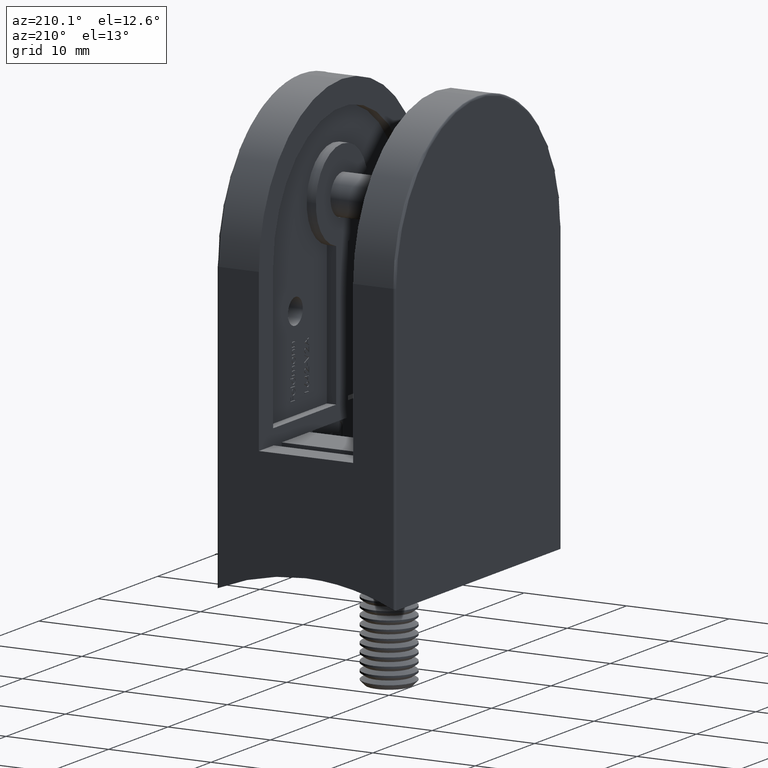
[diagram: clean part render]
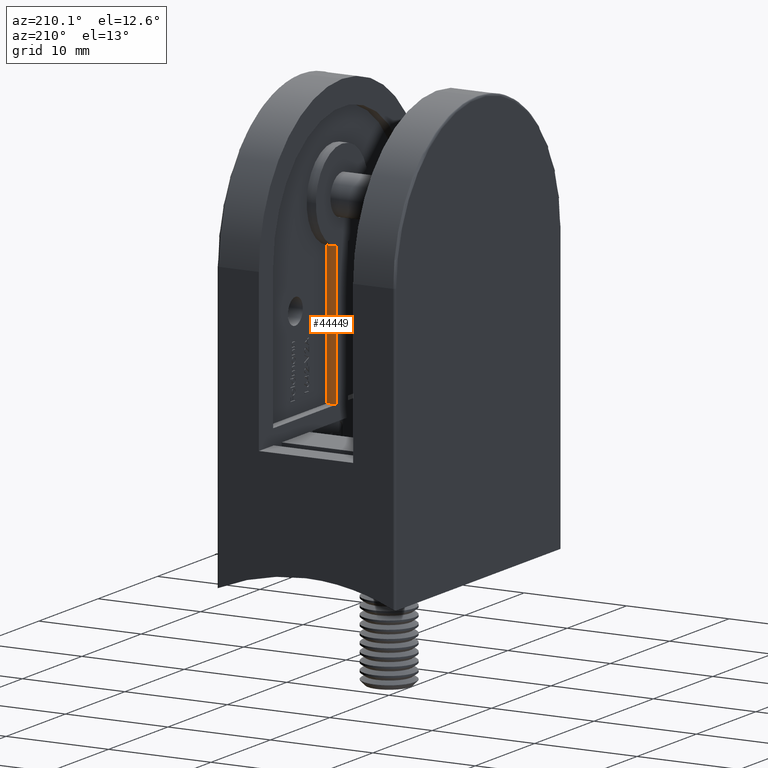
[diagram: same view with one face highlighted and labeled with its STEP entity id]
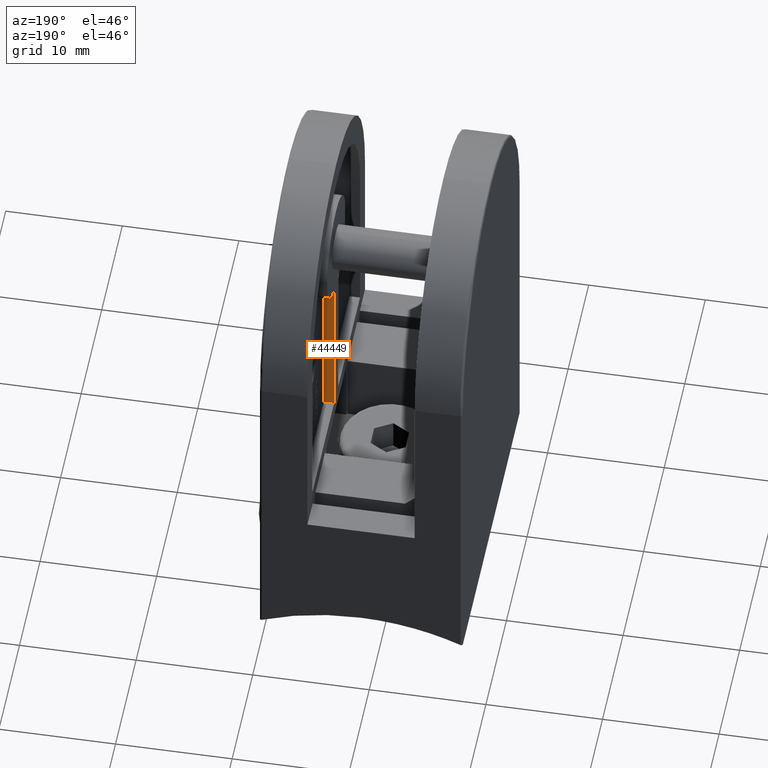
[diagram: same view with one face highlighted and labeled with its STEP entity id]
A machine part, auxiliary view. The second image highlights one B-rep face of the part: STEP entity #44449.
A second angle (auxiliary view) of the same face is appended — the face is thin or edge-on in the first view.
In plain terms, the highlighted planar face has unit normal (0, -1, -0).
Its self-contained STEP definition (entity closure, byte-faithful):
#250 = EDGE_CURVE ( 'NONE', #12890, #6719, #54255, .T. ) ;
#796 = VERTEX_POINT ( 'NONE', #51304 ) ;
#2780 = CARTESIAN_POINT ( 'NONE',  ( 4.099999999999999600, -1.000000000000000000, 11.99999999999998900 ) ) ;
#4431 = VECTOR ( 'NONE', #5188, 1000.000000000000000 ) ;
#5188 = DIRECTION ( 'NONE',  ( -0.0000000000000000000, -1.264823475192493500E-016, -1.000000000000000000 ) ) ;
#6511 = DIRECTION ( 'NONE',  ( 0.0000000000000000000, 1.264823475192493500E-016, 1.000000000000000000 ) ) ;
#6719 = VERTEX_POINT ( 'NONE', #8367 ) ;
#8367 = CARTESIAN_POINT ( 'NONE',  ( 3.199999999999999700, -1.000000000000000000, 11.99999999999998900 ) ) ;
#9354 = ORIENTED_EDGE ( 'NONE', *, *, #50421, .T. ) ;
#10259 = EDGE_CURVE ( 'NONE', #796, #6719, #16226, .T. ) ;
#11859 = DIRECTION ( 'NONE',  ( -1.000000000000000000, -0.0000000000000000000, -0.0000000000000000000 ) ) ;
#12890 = VERTEX_POINT ( 'NONE', #2780 ) ;
#14320 = VERTEX_POINT ( 'NONE', #20630 ) ;
#15977 = VECTOR ( 'NONE', #56035, 1000.000000000000000 ) ;
#16226 = LINE ( 'NONE', #21121, #4431 ) ;
#18621 = LINE ( 'NONE', #38987, #26226 ) ;
#20257 = PLANE ( 'NONE',  #56242 ) ;
#20630 = CARTESIAN_POINT ( 'NONE',  ( 4.100000000000006800, -0.9999999999999985600, 25.71514294287428700 ) ) ;
#21121 = CARTESIAN_POINT ( 'NONE',  ( 3.199999999999999700, -1.000000000000000000, 11.99999999999998900 ) ) ;
#23529 = LINE ( 'NONE', #42744, #52789 ) ;
#26226 = VECTOR ( 'NONE', #56882, 1000.000000000000000 ) ;
#29708 = EDGE_LOOP ( 'NONE', ( #40848, #9354, #40550, #56492 ) ) ;
#31910 = FACE_OUTER_BOUND ( 'NONE', #29708, .T. ) ;
#33095 = DIRECTION ( 'NONE',  ( 0.0000000000000000000, 1.000000000000000000, -1.264823475192493500E-016 ) ) ;
#38987 = CARTESIAN_POINT ( 'NONE',  ( 4.099999999999999600, -1.000000000000000000, 11.99999999999998900 ) ) ;
#40550 = ORIENTED_EDGE ( 'NONE', *, *, #10259, .T. ) ;
#40848 = ORIENTED_EDGE ( 'NONE', *, *, #51565, .F. ) ;
#42625 = CARTESIAN_POINT ( 'NONE',  ( 28.16657433038612600, -1.000000000000000000, 11.99999999999998900 ) ) ;
#42744 = CARTESIAN_POINT ( 'NONE',  ( 28.16657433038612600, -0.9999999999999985600, 25.71514294287428700 ) ) ;
#44449 = ADVANCED_FACE ( 'NONE', ( #31910 ), #20257, .F. ) ;
#50421 = EDGE_CURVE ( 'NONE', #14320, #796, #23529, .T. ) ;
#51304 = CARTESIAN_POINT ( 'NONE',  ( 3.199999999999999700, -0.9999999999999985600, 25.71514294287428700 ) ) ;
#51565 = EDGE_CURVE ( 'NONE', #14320, #12890, #18621, .T. ) ;
#52789 = VECTOR ( 'NONE', #11859, 1000.000000000000000 ) ;
#54255 = LINE ( 'NONE', #42625, #15977 ) ;
#55855 = CARTESIAN_POINT ( 'NONE',  ( 28.16657433038612600, -1.000000000000000000, 11.99999999999998900 ) ) ;
#56035 = DIRECTION ( 'NONE',  ( -1.000000000000000000, -0.0000000000000000000, -0.0000000000000000000 ) ) ;
#56242 = AXIS2_PLACEMENT_3D ( 'NONE', #55855, #33095, #6511 ) ;
#56492 = ORIENTED_EDGE ( 'NONE', *, *, #250, .F. ) ;
#56882 = DIRECTION ( 'NONE',  ( 0.0000000000000000000, -1.264823475192493500E-016, -1.000000000000000000 ) ) ;